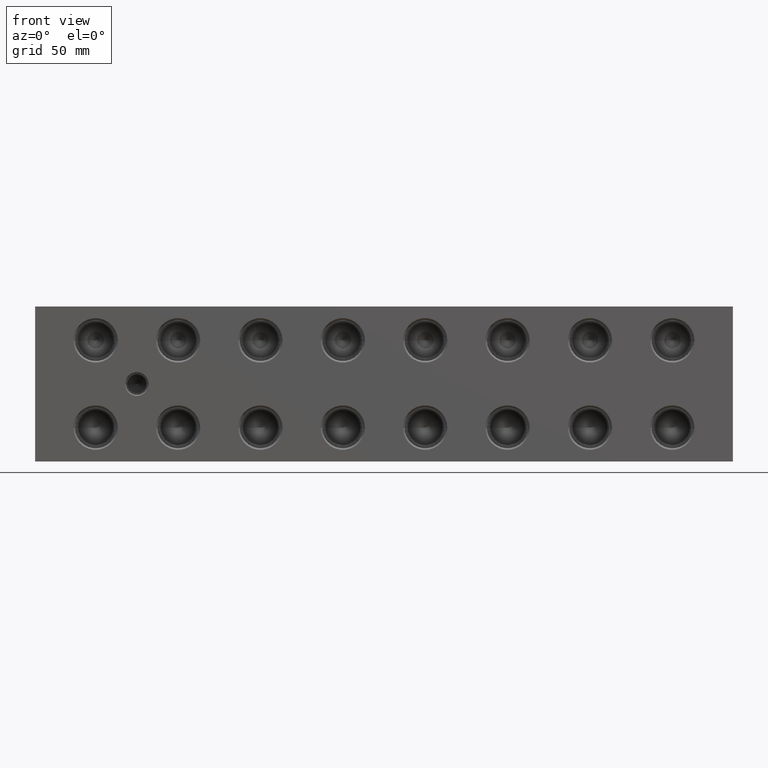
[diagram: clean part render]
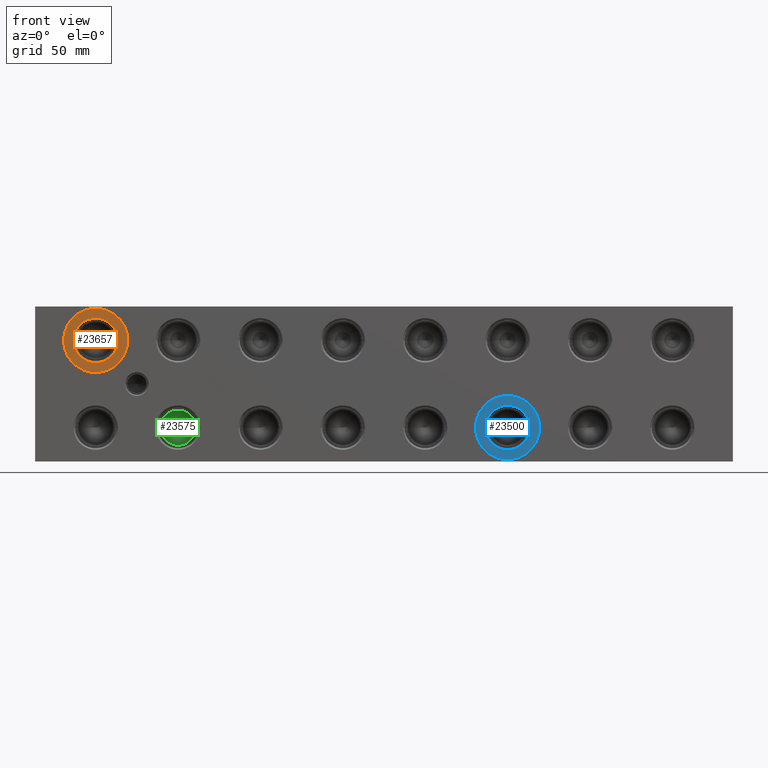
[diagram: same view with three faces highlighted in distinct colors, each labeled with its STEP entity id]
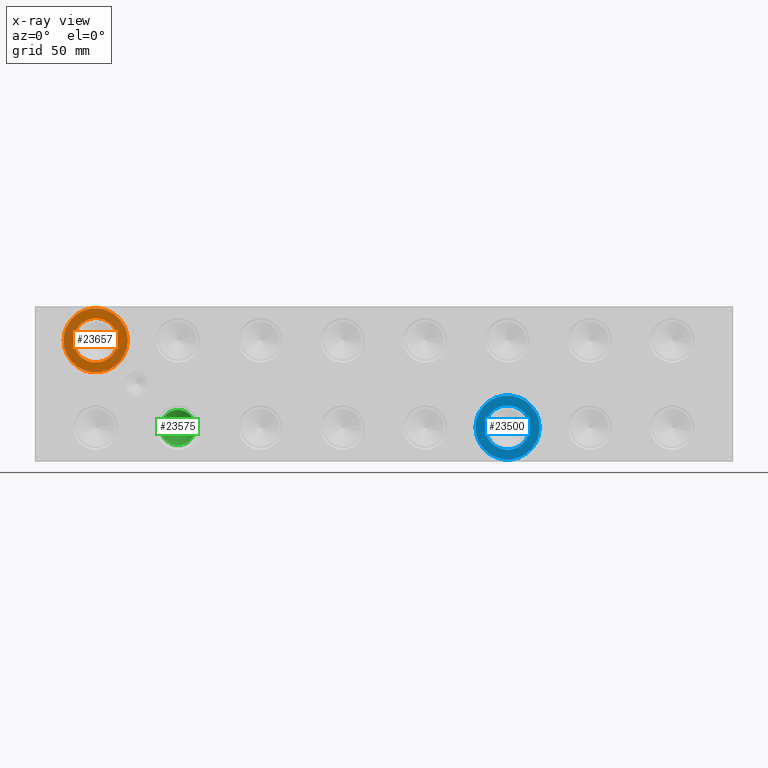
[diagram: x-ray of the same camera — body ghosted, the three highlighted faces saturated]
A machine part, front view with three faces highlighted in distinct colors.
The next image is the same camera in x-ray (body ghosted, the three faces saturated) — at least one of them is partly hidden behind the body in this view.
Their STEP definitions:

[orange] entity #23657 — the highlighted planar face has unit normal (0, 1, 0).
#1162=CIRCLE('',#25127,21.0185);
#1163=CIRCLE('',#25128,21.0185);
#1164=CIRCLE('',#25130,14.5923);
#1165=CIRCLE('',#25131,14.5923);
#2248=FACE_BOUND('',#4799,.T.);
#3391=FACE_OUTER_BOUND('',#4798,.T.);
#4798=EDGE_LOOP('',(#20137,#20138));
#4799=EDGE_LOOP('',(#20139,#20140));
#10850=VERTEX_POINT('',#40556);
#10851=VERTEX_POINT('',#40558);
#10852=VERTEX_POINT('',#40562);
#10853=VERTEX_POINT('',#40563);
#14074=EDGE_CURVE('',#10850,#10851,#1162,.T.);
#14075=EDGE_CURVE('',#10851,#10850,#1163,.T.);
#14076=EDGE_CURVE('',#10852,#10853,#1164,.T.);
#14077=EDGE_CURVE('',#10853,#10852,#1165,.T.);
#20137=ORIENTED_EDGE('',*,*,#14075,.F.);
#20138=ORIENTED_EDGE('',*,*,#14074,.F.);
#20139=ORIENTED_EDGE('',*,*,#14076,.T.);
#20140=ORIENTED_EDGE('',*,*,#14077,.T.);
#21853=PLANE('',#25129);
#23657=ADVANCED_FACE('',(#3391,#2248),#21853,.F.);
#25127=AXIS2_PLACEMENT_3D('',#40559,#29961,#29962);
#25128=AXIS2_PLACEMENT_3D('',#40560,#29963,#29964);
#25129=AXIS2_PLACEMENT_3D('',#40561,#29965,#29966);
#25130=AXIS2_PLACEMENT_3D('',#40564,#29967,#29968);
#25131=AXIS2_PLACEMENT_3D('',#40565,#29969,#29970);
#29961=DIRECTION('center_axis',(0.,1.,0.));
#29962=DIRECTION('ref_axis',(1.,0.,0.));
#29963=DIRECTION('center_axis',(0.,1.,0.));
#29964=DIRECTION('ref_axis',(1.,0.,0.));
#29965=DIRECTION('center_axis',(0.,1.,0.));
#29966=DIRECTION('ref_axis',(0.,0.,1.));
#29967=DIRECTION('center_axis',(0.,1.,0.));
#29968=DIRECTION('ref_axis',(1.,0.,0.));
#29969=DIRECTION('center_axis',(0.,1.,0.));
#29970=DIRECTION('ref_axis',(1.,0.,0.));
#40556=CARTESIAN_POINT('',(18.6563,0.7874,79.375));
#40558=CARTESIAN_POINT('',(60.6933,0.7874,79.375));
#40559=CARTESIAN_POINT('Origin',(39.6748,0.7874,79.375));
#40560=CARTESIAN_POINT('Origin',(39.6748,0.7874,79.375));
#40561=CARTESIAN_POINT('Origin',(54.2671,0.7874,79.375));
#40562=CARTESIAN_POINT('',(54.2671,0.7874,79.375));
#40563=CARTESIAN_POINT('',(25.0825,0.787399999999999,79.375));
#40564=CARTESIAN_POINT('Origin',(39.6748,0.7874,79.375));
#40565=CARTESIAN_POINT('Origin',(39.6748,0.7874,79.375));

[blue] entity #23500 — the highlighted planar face has unit normal (0, 1, 0).
#928=CIRCLE('',#24736,21.0185);
#929=CIRCLE('',#24737,21.0185);
#930=CIRCLE('',#24739,14.5923);
#931=CIRCLE('',#24740,14.5923);
#2223=FACE_BOUND('',#4617,.T.);
#3234=FACE_OUTER_BOUND('',#4616,.T.);
#4616=EDGE_LOOP('',(#19382,#19383));
#4617=EDGE_LOOP('',(#19384,#19385));
#10600=VERTEX_POINT('',#39783);
#10601=VERTEX_POINT('',#39785);
#10602=VERTEX_POINT('',#39789);
#10603=VERTEX_POINT('',#39790);
#13708=EDGE_CURVE('',#10600,#10601,#928,.T.);
#13709=EDGE_CURVE('',#10601,#10600,#929,.T.);
#13710=EDGE_CURVE('',#10602,#10603,#930,.T.);
#13711=EDGE_CURVE('',#10603,#10602,#931,.T.);
#19382=ORIENTED_EDGE('',*,*,#13709,.F.);
#19383=ORIENTED_EDGE('',*,*,#13708,.F.);
#19384=ORIENTED_EDGE('',*,*,#13710,.T.);
#19385=ORIENTED_EDGE('',*,*,#13711,.T.);
#21828=PLANE('',#24738);
#23500=ADVANCED_FACE('',(#3234,#2223),#21828,.F.);
#24736=AXIS2_PLACEMENT_3D('',#39786,#29047,#29048);
#24737=AXIS2_PLACEMENT_3D('',#39787,#29049,#29050);
#24738=AXIS2_PLACEMENT_3D('',#39788,#29051,#29052);
#24739=AXIS2_PLACEMENT_3D('',#39791,#29053,#29054);
#24740=AXIS2_PLACEMENT_3D('',#39792,#29055,#29056);
#29047=DIRECTION('center_axis',(0.,1.,0.));
#29048=DIRECTION('ref_axis',(1.,0.,0.));
#29049=DIRECTION('center_axis',(0.,1.,0.));
#29050=DIRECTION('ref_axis',(1.,0.,0.));
#29051=DIRECTION('center_axis',(0.,1.,0.));
#29052=DIRECTION('ref_axis',(0.,0.,1.));
#29053=DIRECTION('center_axis',(0.,1.,0.));
#29054=DIRECTION('ref_axis',(1.,0.,0.));
#29055=DIRECTION('center_axis',(0.,1.,0.));
#29056=DIRECTION('ref_axis',(1.,0.,0.));
#39783=CARTESIAN_POINT('',(288.5313,0.7874,22.225));
#39785=CARTESIAN_POINT('',(330.5683,0.7874,22.225));
#39786=CARTESIAN_POINT('Origin',(309.5498,0.7874,22.225));
#39787=CARTESIAN_POINT('Origin',(309.5498,0.7874,22.225));
#39788=CARTESIAN_POINT('Origin',(324.1421,0.7874,22.225));
#39789=CARTESIAN_POINT('',(324.1421,0.7874,22.225));
#39790=CARTESIAN_POINT('',(294.9575,0.78739999999999,22.225));
#39791=CARTESIAN_POINT('Origin',(309.5498,0.7874,22.225));
#39792=CARTESIAN_POINT('Origin',(309.5498,0.7874,22.225));

[green] entity #23575 — the highlighted conical surface has half-angle 60 deg.
#89=CONICAL_SURFACE('',#24937,5.7531,1.0471975511966);
#1054=CIRCLE('',#24938,11.5062);
#1055=CIRCLE('',#24939,11.5062);
#3309=FACE_OUTER_BOUND('',#4699,.T.);
#4699=EDGE_LOOP('',(#19761,#19762,#19763,#19764));
#6803=LINE('',#40194,#8730);
#8730=VECTOR('',#29520,5.7531);
#10737=VERTEX_POINT('',#40190);
#10738=VERTEX_POINT('',#40191);
#10739=VERTEX_POINT('',#40193);
#13901=EDGE_CURVE('',#10737,#10738,#1054,.T.);
#13902=EDGE_CURVE('',#10738,#10739,#6803,.T.);
#13903=EDGE_CURVE('',#10738,#10737,#1055,.T.);
#19761=ORIENTED_EDGE('',*,*,#13901,.T.);
#19762=ORIENTED_EDGE('',*,*,#13902,.T.);
#19763=ORIENTED_EDGE('',*,*,#13902,.F.);
#19764=ORIENTED_EDGE('',*,*,#13903,.T.);
#23575=ADVANCED_FACE('',(#3309),#89,.F.);
#24937=AXIS2_PLACEMENT_3D('',#40189,#29516,#29517);
#24938=AXIS2_PLACEMENT_3D('',#40192,#29518,#29519);
#24939=AXIS2_PLACEMENT_3D('',#40195,#29521,#29522);
#29516=DIRECTION('center_axis',(0.,-1.,0.));
#29517=DIRECTION('ref_axis',(1.,0.,0.));
#29518=DIRECTION('center_axis',(0.,-1.,0.));
#29519=DIRECTION('ref_axis',(1.,0.,0.));
#29520=DIRECTION('',(0.866025403784439,0.5,1.06057523872491E-16));
#29521=DIRECTION('center_axis',(0.,-1.,0.));
#29522=DIRECTION('ref_axis',(1.,0.,0.));
#40189=CARTESIAN_POINT('Origin',(93.6498,34.1787738336748,22.225));
#40190=CARTESIAN_POINT('',(105.156,30.85722,22.225));
#40191=CARTESIAN_POINT('',(82.1436,30.85722,22.225));
#40192=CARTESIAN_POINT('Origin',(93.6498,30.85722,22.225));
#40193=CARTESIAN_POINT('',(93.6498,37.5003276673497,22.225));
#40194=CARTESIAN_POINT('',(87.8967,34.1787738336748,22.225));
#40195=CARTESIAN_POINT('Origin',(93.6498,30.85722,22.225));